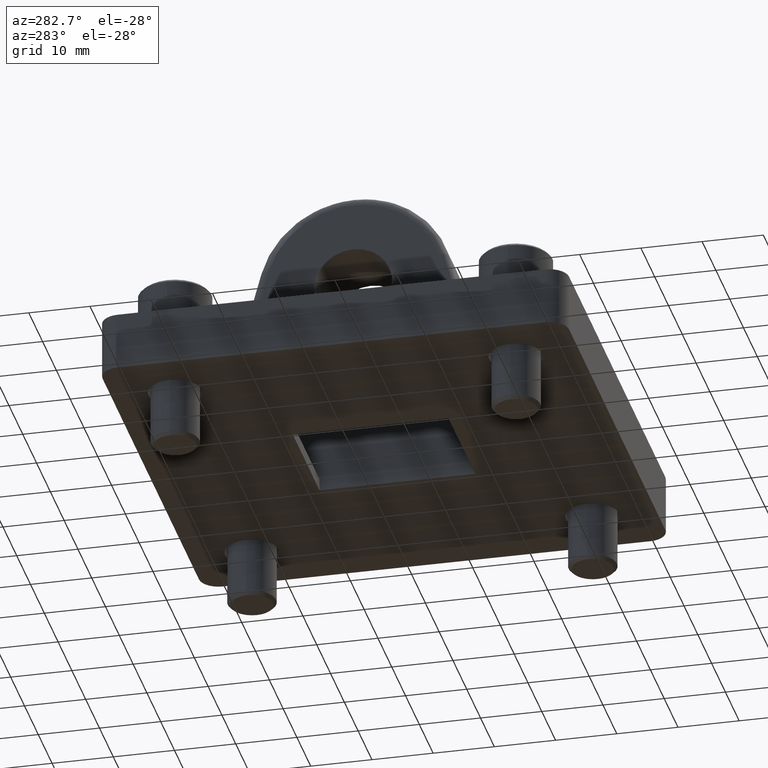
[diagram: clean part render]
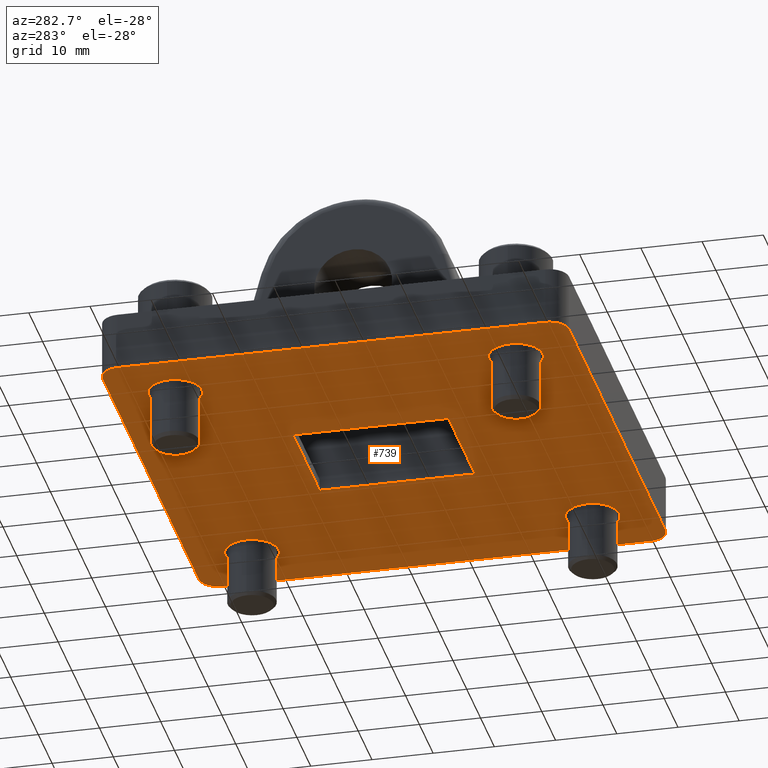
[diagram: same view with one face highlighted and labeled with its STEP entity id]
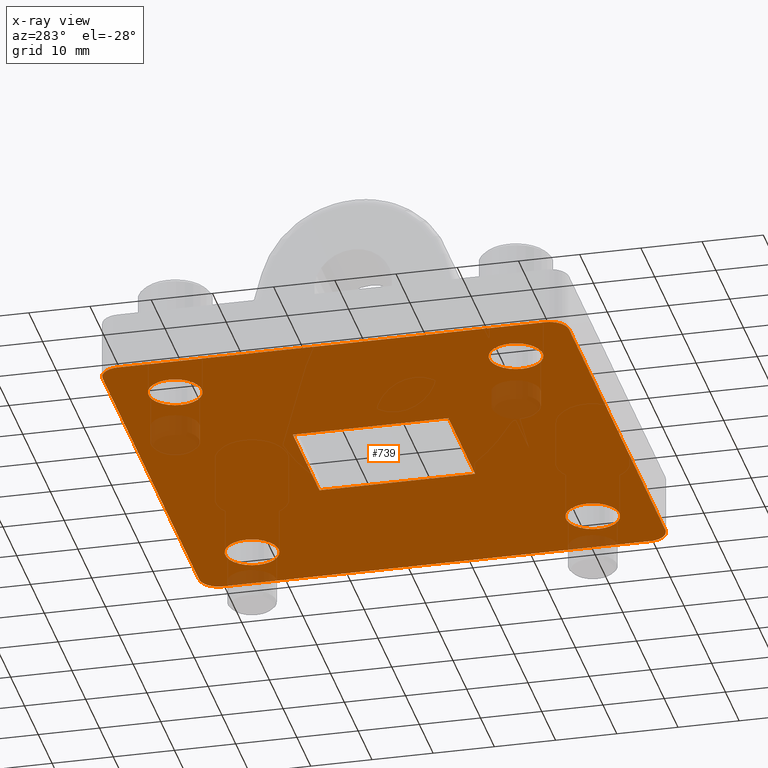
[diagram: x-ray of the same camera — body ghosted, the highlighted face saturated]
A machine part, auxiliary view. The second image highlights one B-rep face of the part: STEP entity #739.
The next image is the same camera in x-ray: the body ghosted, the highlighted face saturated — about 5% of this face is hidden behind the body in this view.
In plain terms, the highlighted planar face has unit normal (0, 0, -1).
Its self-contained STEP definition (entity closure, byte-faithful):
#7 = CARTESIAN_POINT ( 'NONE',  ( 1.267874999999999641, 1.096000000000000085, -4.018372309702242118E-17 ) ) ;
#13 = CARTESIAN_POINT ( 'NONE',  ( 0.3799999999999999489, -0.5000000000000000000, 0.0000000000000000000 ) ) ;
#15 = EDGE_CURVE ( 'NONE', #573, #3151, #2320, .T. ) ;
#40 = AXIS2_PLACEMENT_3D ( 'NONE', #3050, #585, #1413 ) ;
#57 = EDGE_CURVE ( 'NONE', #1672, #104, #2263, .T. ) ;
#69 = AXIS2_PLACEMENT_3D ( 'NONE', #1283, #959, #1540 ) ;
#94 = AXIS2_PLACEMENT_3D ( 'NONE', #449, #1231, #1830 ) ;
#96 = CIRCLE ( 'NONE', #2099, 0.1718749999999995282 ) ;
#104 = VERTEX_POINT ( 'NONE', #2794 ) ;
#131 = AXIS2_PLACEMENT_3D ( 'NONE', #1385, #2517, #878 ) ;
#136 = EDGE_CURVE ( 'NONE', #736, #464, #3295, .T. ) ;
#144 = EDGE_LOOP ( 'NONE', ( #1806, #310 ) ) ;
#154 = VECTOR ( 'NONE', #514, 39.37007874015748143 ) ;
#162 = FACE_BOUND ( 'NONE', #1450, .T. ) ;
#179 = FACE_BOUND ( 'NONE', #144, .T. ) ;
#216 = ORIENTED_EDGE ( 'NONE', *, *, #2911, .F. ) ;
#308 = EDGE_CURVE ( 'NONE', #2638, #3098, #3011, .T. ) ;
#309 = CIRCLE ( 'NONE', #2359, 0.1249999999999999029 ) ;
#310 = ORIENTED_EDGE ( 'NONE', *, *, #2088, .F. ) ;
#330 = EDGE_CURVE ( 'NONE', #573, #2914, #2183, .T. ) ;
#334 = DIRECTION ( 'NONE',  ( -0.0000000000000000000, -0.0000000000000000000, -1.000000000000000000 ) ) ;
#401 = EDGE_LOOP ( 'NONE', ( #802, #2467 ) ) ;
#449 = CARTESIAN_POINT ( 'NONE',  ( -1.096000000000000085, 1.096000000000000085, -4.018372309702242118E-17 ) ) ;
#457 = ORIENTED_EDGE ( 'NONE', *, *, #330, .F. ) ;
#464 = VERTEX_POINT ( 'NONE', #3541 ) ;
#497 = AXIS2_PLACEMENT_3D ( 'NONE', #1922, #3220, #1517 ) ;
#507 = CARTESIAN_POINT ( 'NONE',  ( 1.374999999999999112, 1.500000000000000222, 0.0000000000000000000 ) ) ;
#514 = DIRECTION ( 'NONE',  ( 0.0000000000000000000, 1.000000000000000000, 0.0000000000000000000 ) ) ;
#528 = DIRECTION ( 'NONE',  ( 0.0000000000000000000, 0.0000000000000000000, -1.000000000000000000 ) ) ;
#546 = CARTESIAN_POINT ( 'NONE',  ( 1.500000000000000222, -1.500000000000000222, 0.0000000000000000000 ) ) ;
#573 = VERTEX_POINT ( 'NONE', #1749 ) ;
#582 = DIRECTION ( 'NONE',  ( -1.000000000000000000, -0.0000000000000000000, -0.0000000000000000000 ) ) ;
#585 = DIRECTION ( 'NONE',  ( -0.0000000000000000000, -0.0000000000000000000, -1.000000000000000000 ) ) ;
#599 = DIRECTION ( 'NONE',  ( -1.000000000000000000, 0.0000000000000000000, 0.0000000000000000000 ) ) ;
#616 = CIRCLE ( 'NONE', #497, 0.1718749999999995282 ) ;
#644 = CARTESIAN_POINT ( 'NONE',  ( 1.500000000000000222, 1.374999999999999112, 0.0000000000000000000 ) ) ;
#652 = DIRECTION ( 'NONE',  ( -1.000000000000000000, 0.0000000000000000000, 0.0000000000000000000 ) ) ;
#660 = AXIS2_PLACEMENT_3D ( 'NONE', #871, #334, #599 ) ;
#669 = AXIS2_PLACEMENT_3D ( 'NONE', #2253, #1775, #2236 ) ;
#676 = CARTESIAN_POINT ( 'NONE',  ( -0.3799999999999999489, -0.5000000000000000000, 0.0000000000000000000 ) ) ;
#682 = EDGE_CURVE ( 'NONE', #893, #3583, #2348, .T. ) ;
#697 = CARTESIAN_POINT ( 'NONE',  ( -1.375000000000000222, 1.500000000000000222, 0.0000000000000000000 ) ) ;
#726 = VECTOR ( 'NONE', #2264, 39.37007874015748143 ) ;
#736 = VERTEX_POINT ( 'NONE', #1310 ) ;
#739 = ADVANCED_FACE ( 'NONE', ( #1246, #179, #2653, #3459, #743, #162 ), #1591, .T. ) ;
#743 = FACE_OUTER_BOUND ( 'NONE', #3157, .T. ) ;
#781 = EDGE_CURVE ( 'NONE', #2638, #3583, #309, .T. ) ;
#791 = LINE ( 'NONE', #13, #154 ) ;
#802 = ORIENTED_EDGE ( 'NONE', *, *, #3176, .F. ) ;
#809 = DIRECTION ( 'NONE',  ( -0.0000000000000000000, -1.000000000000000000, -0.0000000000000000000 ) ) ;
#871 = CARTESIAN_POINT ( 'NONE',  ( -1.096000000000000085, -1.096000000000000307, -4.018372309702242118E-17 ) ) ;
#878 = DIRECTION ( 'NONE',  ( -1.000000000000000000, 0.0000000000000000000, 0.0000000000000000000 ) ) ;
#886 = EDGE_LOOP ( 'NONE', ( #1710, #1188 ) ) ;
#893 = VERTEX_POINT ( 'NONE', #1675 ) ;
#956 = VERTEX_POINT ( 'NONE', #1730 ) ;
#959 = DIRECTION ( 'NONE',  ( 0.0000000000000000000, 0.0000000000000000000, -1.000000000000000000 ) ) ;
#1080 = CIRCLE ( 'NONE', #1442, 0.1718749999999995282 ) ;
#1084 = ORIENTED_EDGE ( 'NONE', *, *, #2834, .T. ) ;
#1131 = CARTESIAN_POINT ( 'NONE',  ( -1.096000000000000085, -1.096000000000000307, -4.018372309702242118E-17 ) ) ;
#1151 = CARTESIAN_POINT ( 'NONE',  ( -0.3799999999999999489, 0.5000000000000000000, 0.0000000000000000000 ) ) ;
#1157 = VERTEX_POINT ( 'NONE', #1977 ) ;
#1172 = ORIENTED_EDGE ( 'NONE', *, *, #781, .T. ) ;
#1188 = ORIENTED_EDGE ( 'NONE', *, *, #1465, .F. ) ;
#1202 = CIRCLE ( 'NONE', #3248, 0.1249999999999999029 ) ;
#1215 = DIRECTION ( 'NONE',  ( 1.000000000000000000, -0.0000000000000000000, -0.0000000000000000000 ) ) ;
#1219 = CARTESIAN_POINT ( 'NONE',  ( -1.500000000000000222, -1.500000000000000222, 0.0000000000000000000 ) ) ;
#1231 = DIRECTION ( 'NONE',  ( -0.0000000000000000000, -0.0000000000000000000, -1.000000000000000000 ) ) ;
#1245 = DIRECTION ( 'NONE',  ( -0.0000000000000000000, -0.0000000000000000000, -1.000000000000000000 ) ) ;
#1246 = FACE_BOUND ( 'NONE', #1636, .T. ) ;
#1283 = CARTESIAN_POINT ( 'NONE',  ( 0.0000000000000000000, 0.0000000000000000000, 0.0000000000000000000 ) ) ;
#1291 = DIRECTION ( 'NONE',  ( -1.000000000000000000, 0.0000000000000000000, 0.0000000000000000000 ) ) ;
#1304 = ORIENTED_EDGE ( 'NONE', *, *, #308, .F. ) ;
#1310 = CARTESIAN_POINT ( 'NONE',  ( -1.267874999999999641, 1.096000000000000085, -4.018372309702242118E-17 ) ) ;
#1358 = DIRECTION ( 'NONE',  ( -1.000000000000000000, 0.0000000000000000000, 0.0000000000000000000 ) ) ;
#1374 = EDGE_CURVE ( 'NONE', #893, #1157, #2768, .T. ) ;
#1385 = CARTESIAN_POINT ( 'NONE',  ( -1.375000000000000222, -1.375000000000000222, 0.0000000000000000000 ) ) ;
#1390 = CARTESIAN_POINT ( 'NONE',  ( -0.3799999999999999489, -0.5000000000000000000, 0.0000000000000000000 ) ) ;
#1413 = DIRECTION ( 'NONE',  ( -1.000000000000000000, 0.0000000000000000000, 0.0000000000000000000 ) ) ;
#1442 = AXIS2_PLACEMENT_3D ( 'NONE', #1891, #2987, #2148 ) ;
#1450 = EDGE_LOOP ( 'NONE', ( #3178, #457, #1942, #2674 ) ) ;
#1465 = EDGE_CURVE ( 'NONE', #956, #1915, #2134, .T. ) ;
#1471 = ORIENTED_EDGE ( 'NONE', *, *, #1578, .F. ) ;
#1487 = VERTEX_POINT ( 'NONE', #1963 ) ;
#1497 = CIRCLE ( 'NONE', #40, 0.1718749999999995282 ) ;
#1508 = DIRECTION ( 'NONE',  ( 1.000000000000000000, 0.0000000000000000000, 0.0000000000000000000 ) ) ;
#1517 = DIRECTION ( 'NONE',  ( -1.000000000000000000, 0.0000000000000000000, 0.0000000000000000000 ) ) ;
#1519 = DIRECTION ( 'NONE',  ( -1.000000000000000000, 0.0000000000000000000, 0.0000000000000000000 ) ) ;
#1540 = DIRECTION ( 'NONE',  ( -1.000000000000000000, 0.0000000000000000000, -0.0000000000000000000 ) ) ;
#1572 = EDGE_CURVE ( 'NONE', #1915, #956, #2602, .T. ) ;
#1578 = EDGE_CURVE ( 'NONE', #3034, #1157, #2841, .T. ) ;
#1585 = ORIENTED_EDGE ( 'NONE', *, *, #1374, .T. ) ;
#1591 = PLANE ( 'NONE',  #69 ) ;
#1636 = EDGE_LOOP ( 'NONE', ( #2785, #216 ) ) ;
#1663 = DIRECTION ( 'NONE',  ( -0.0000000000000000000, -0.0000000000000000000, -1.000000000000000000 ) ) ;
#1672 = VERTEX_POINT ( 'NONE', #2809 ) ;
#1675 = CARTESIAN_POINT ( 'NONE',  ( -1.375000000000000222, -1.500000000000000222, 0.0000000000000000000 ) ) ;
#1688 = CARTESIAN_POINT ( 'NONE',  ( -1.500000000000000222, -1.500000000000000222, 0.0000000000000000000 ) ) ;
#1710 = ORIENTED_EDGE ( 'NONE', *, *, #1572, .F. ) ;
#1730 = CARTESIAN_POINT ( 'NONE',  ( -0.9241250000000006404, -1.096000000000000307, -4.018372309702242118E-17 ) ) ;
#1749 = CARTESIAN_POINT ( 'NONE',  ( -0.3799999999999999489, -0.5000000000000000000, 0.0000000000000000000 ) ) ;
#1775 = DIRECTION ( 'NONE',  ( -0.0000000000000000000, -0.0000000000000000000, -1.000000000000000000 ) ) ;
#1790 = VECTOR ( 'NONE', #809, 39.37007874015748143 ) ;
#1806 = ORIENTED_EDGE ( 'NONE', *, *, #136, .F. ) ;
#1830 = DIRECTION ( 'NONE',  ( -1.000000000000000000, 0.0000000000000000000, 0.0000000000000000000 ) ) ;
#1883 = DIRECTION ( 'NONE',  ( 0.0000000000000000000, 0.0000000000000000000, -1.000000000000000000 ) ) ;
#1891 = CARTESIAN_POINT ( 'NONE',  ( 1.096000000000000085, 1.096000000000000085, -4.018372309702242118E-17 ) ) ;
#1915 = VERTEX_POINT ( 'NONE', #2437 ) ;
#1922 = CARTESIAN_POINT ( 'NONE',  ( 1.096000000000000085, -1.096000000000000307, -4.018372309702242118E-17 ) ) ;
#1937 = AXIS2_PLACEMENT_3D ( 'NONE', #3028, #1883, #1291 ) ;
#1942 = ORIENTED_EDGE ( 'NONE', *, *, #15, .T. ) ;
#1961 = LINE ( 'NONE', #2507, #2202 ) ;
#1963 = CARTESIAN_POINT ( 'NONE',  ( 0.3799999999999999489, 0.5000000000000000000, 0.0000000000000000000 ) ) ;
#1977 = CARTESIAN_POINT ( 'NONE',  ( -1.500000000000000222, -1.375000000000000222, 0.0000000000000000000 ) ) ;
#2013 = EDGE_CURVE ( 'NONE', #2914, #1487, #2019, .T. ) ;
#2019 = LINE ( 'NONE', #1151, #2845 ) ;
#2069 = CARTESIAN_POINT ( 'NONE',  ( 1.500000000000000222, -1.375000000000000222, 0.0000000000000000000 ) ) ;
#2072 = VECTOR ( 'NONE', #1508, 39.37007874015748143 ) ;
#2088 = EDGE_CURVE ( 'NONE', #464, #736, #1497, .T. ) ;
#2092 = VERTEX_POINT ( 'NONE', #7 ) ;
#2099 = AXIS2_PLACEMENT_3D ( 'NONE', #2390, #1245, #652 ) ;
#2134 = CIRCLE ( 'NONE', #2428, 0.1718749999999995282 ) ;
#2148 = DIRECTION ( 'NONE',  ( -1.000000000000000000, 0.0000000000000000000, 0.0000000000000000000 ) ) ;
#2183 = LINE ( 'NONE', #1390, #726 ) ;
#2202 = VECTOR ( 'NONE', #582, 39.37007874015748143 ) ;
#2204 = ORIENTED_EDGE ( 'NONE', *, *, #682, .F. ) ;
#2236 = DIRECTION ( 'NONE',  ( -1.000000000000000000, 0.0000000000000000000, 0.0000000000000000000 ) ) ;
#2252 = VERTEX_POINT ( 'NONE', #3289 ) ;
#2253 = CARTESIAN_POINT ( 'NONE',  ( 1.096000000000000085, -1.096000000000000307, -4.018372309702242118E-17 ) ) ;
#2263 = CIRCLE ( 'NONE', #669, 0.1718749999999995282 ) ;
#2264 = DIRECTION ( 'NONE',  ( 0.0000000000000000000, 1.000000000000000000, 0.0000000000000000000 ) ) ;
#2320 = LINE ( 'NONE', #676, #2609 ) ;
#2348 = LINE ( 'NONE', #1219, #2072 ) ;
#2359 = AXIS2_PLACEMENT_3D ( 'NONE', #2701, #2988, #1519 ) ;
#2370 = CARTESIAN_POINT ( 'NONE',  ( -0.3799999999999999489, 0.5000000000000000000, 0.0000000000000000000 ) ) ;
#2390 = CARTESIAN_POINT ( 'NONE',  ( 1.096000000000000085, 1.096000000000000085, -4.018372309702242118E-17 ) ) ;
#2398 = CIRCLE ( 'NONE', #1937, 0.1249999999999999029 ) ;
#2428 = AXIS2_PLACEMENT_3D ( 'NONE', #1131, #1663, #1358 ) ;
#2437 = CARTESIAN_POINT ( 'NONE',  ( -1.267874999999999641, -1.096000000000000307, -4.018372309702242118E-17 ) ) ;
#2467 = ORIENTED_EDGE ( 'NONE', *, *, #2955, .F. ) ;
#2507 = CARTESIAN_POINT ( 'NONE',  ( -1.500000000000000222, 1.500000000000000222, 0.0000000000000000000 ) ) ;
#2517 = DIRECTION ( 'NONE',  ( 0.0000000000000000000, 0.0000000000000000000, -1.000000000000000000 ) ) ;
#2573 = EDGE_CURVE ( 'NONE', #2838, #3098, #1202, .T. ) ;
#2602 = CIRCLE ( 'NONE', #660, 0.1718749999999995282 ) ;
#2609 = VECTOR ( 'NONE', #1215, 39.37007874015748143 ) ;
#2638 = VERTEX_POINT ( 'NONE', #2069 ) ;
#2643 = CARTESIAN_POINT ( 'NONE',  ( 1.374999999999999112, -1.500000000000000222, 0.0000000000000000000 ) ) ;
#2653 = FACE_BOUND ( 'NONE', #401, .T. ) ;
#2674 = ORIENTED_EDGE ( 'NONE', *, *, #3372, .T. ) ;
#2689 = EDGE_CURVE ( 'NONE', #2838, #3525, #1961, .T. ) ;
#2701 = CARTESIAN_POINT ( 'NONE',  ( 1.375000000000000222, -1.375000000000000222, 0.0000000000000000000 ) ) ;
#2760 = DIRECTION ( 'NONE',  ( 0.0000000000000000000, 1.000000000000000000, 0.0000000000000000000 ) ) ;
#2768 = CIRCLE ( 'NONE', #131, 0.1249999999999999029 ) ;
#2785 = ORIENTED_EDGE ( 'NONE', *, *, #57, .F. ) ;
#2794 = CARTESIAN_POINT ( 'NONE',  ( 1.267874999999999641, -1.096000000000000307, -4.018372309702242118E-17 ) ) ;
#2809 = CARTESIAN_POINT ( 'NONE',  ( 0.9241250000000006404, -1.096000000000000307, -4.018372309702242118E-17 ) ) ;
#2834 = EDGE_CURVE ( 'NONE', #3034, #3525, #2398, .T. ) ;
#2838 = VERTEX_POINT ( 'NONE', #507 ) ;
#2841 = LINE ( 'NONE', #1688, #1790 ) ;
#2845 = VECTOR ( 'NONE', #3378, 39.37007874015748143 ) ;
#2880 = ORIENTED_EDGE ( 'NONE', *, *, #2689, .F. ) ;
#2911 = EDGE_CURVE ( 'NONE', #104, #1672, #616, .T. ) ;
#2914 = VERTEX_POINT ( 'NONE', #2370 ) ;
#2955 = EDGE_CURVE ( 'NONE', #2092, #2252, #96, .T. ) ;
#2987 = DIRECTION ( 'NONE',  ( -0.0000000000000000000, -0.0000000000000000000, -1.000000000000000000 ) ) ;
#2988 = DIRECTION ( 'NONE',  ( 0.0000000000000000000, 0.0000000000000000000, -1.000000000000000000 ) ) ;
#3006 = ORIENTED_EDGE ( 'NONE', *, *, #2573, .T. ) ;
#3011 = LINE ( 'NONE', #546, #3350 ) ;
#3028 = CARTESIAN_POINT ( 'NONE',  ( -1.375000000000000222, 1.375000000000000222, 0.0000000000000000000 ) ) ;
#3034 = VERTEX_POINT ( 'NONE', #3384 ) ;
#3050 = CARTESIAN_POINT ( 'NONE',  ( -1.096000000000000085, 1.096000000000000085, -4.018372309702242118E-17 ) ) ;
#3086 = DIRECTION ( 'NONE',  ( -1.000000000000000000, 0.0000000000000000000, 0.0000000000000000000 ) ) ;
#3098 = VERTEX_POINT ( 'NONE', #644 ) ;
#3151 = VERTEX_POINT ( 'NONE', #3241 ) ;
#3157 = EDGE_LOOP ( 'NONE', ( #1304, #1172, #2204, #1585, #1471, #1084, #2880, #3006 ) ) ;
#3176 = EDGE_CURVE ( 'NONE', #2252, #2092, #1080, .T. ) ;
#3178 = ORIENTED_EDGE ( 'NONE', *, *, #2013, .F. ) ;
#3220 = DIRECTION ( 'NONE',  ( -0.0000000000000000000, -0.0000000000000000000, -1.000000000000000000 ) ) ;
#3241 = CARTESIAN_POINT ( 'NONE',  ( 0.3799999999999999489, -0.5000000000000000000, 0.0000000000000000000 ) ) ;
#3248 = AXIS2_PLACEMENT_3D ( 'NONE', #3285, #528, #3086 ) ;
#3285 = CARTESIAN_POINT ( 'NONE',  ( 1.375000000000000222, 1.375000000000000222, 0.0000000000000000000 ) ) ;
#3289 = CARTESIAN_POINT ( 'NONE',  ( 0.9241250000000006404, 1.096000000000000085, -4.018372309702242118E-17 ) ) ;
#3295 = CIRCLE ( 'NONE', #94, 0.1718749999999995282 ) ;
#3350 = VECTOR ( 'NONE', #2760, 39.37007874015748143 ) ;
#3372 = EDGE_CURVE ( 'NONE', #3151, #1487, #791, .T. ) ;
#3378 = DIRECTION ( 'NONE',  ( 1.000000000000000000, -0.0000000000000000000, -0.0000000000000000000 ) ) ;
#3384 = CARTESIAN_POINT ( 'NONE',  ( -1.500000000000000222, 1.374999999999999112, 0.0000000000000000000 ) ) ;
#3459 = FACE_BOUND ( 'NONE', #886, .T. ) ;
#3525 = VERTEX_POINT ( 'NONE', #697 ) ;
#3541 = CARTESIAN_POINT ( 'NONE',  ( -0.9241250000000006404, 1.096000000000000085, -4.018372309702242118E-17 ) ) ;
#3583 = VERTEX_POINT ( 'NONE', #2643 ) ;